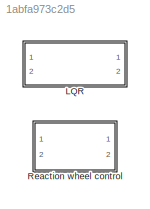
MODEL slx_1abfa973c2d5
KIND model
CONFIG AbsTol = auto
CONFIG FixedStep = auto
CONFIG MaxStep = auto
CONFIG MinStep = auto
CONFIG RelTol = 1e-3
CONFIG SampleTimeConstraint = Unconstrained
CONFIG Solver = VariableStepAuto
CONFIG SolverMode = Auto
CONFIG SolverName = VariableStepAuto
CONFIG StartTime = 0.0
CONFIG StopTime = 10.0
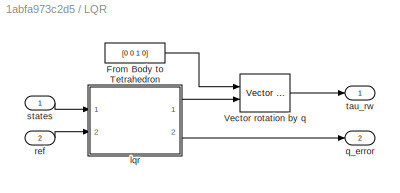
BLOCK [SubSystem] LQR
  Ports = [2, 2]
  RequestExecContextInheritance = off
  Variant = off
BLOCK [Constant] LQR/From Body to Tetrahedron
  Value = [0 0 1 0]
  VectorParams1D = off
BLOCK [Reference] LQR/Vector rotation by q  REF=aausat3_lib/Math Utilities/Quaternion operations/Vector rotation by q  (lib defined in mdl_4157f6465749, slx_d9305f96731e)
  Ports = [2, 1]
  SourceBlock = aausat3_lib/Math Utilities/Quaternion operations/Vector rotation by q
  SourceType = SubSystem
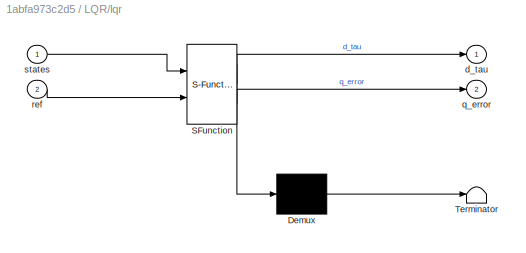
BLOCK [SubSystem] LQR/lqr
  ErrorFcn = Stateflow.Translate.translate
  PermitHierarchicalResolution = ExplicitOnly
  Ports = [2, 2]
  RequestExecContextInheritance = off
  SFBlockType = MATLAB Function
  SystemSampleTime = 1
  TreatAsAtomicUnit = on
  Variant = off
BLOCK [Demux] LQR/lqr/ Demux 
  Outputs = 1
  Ports = [1, 1]
BLOCK [S-Function] LQR/lqr/ SFunction 
  EnableBusSupport = off
  FunctionName = sf_sfun
  PortCounts = [2 3]
  Ports = [2, 3]
  SFunctionDeploymentMode = off
  Tag = Stateflow S-Function linear 7
BLOCK [Terminator] LQR/lqr/ Terminator 
BLOCK [Outport] LQR/lqr/d_tau
  IconDisplay = Port number
BLOCK [Outport] LQR/lqr/q_error
  IconDisplay = Port number
  Port = 2
BLOCK [Inport] LQR/lqr/ref
  IconDisplay = Port number
  Port = 2
BLOCK [Inport] LQR/lqr/states
  IconDisplay = Port number
BLOCK [Outport] LQR/q_error
  IconDisplay = Port number
  Port = 2
BLOCK [Inport] LQR/ref
  IconDisplay = Port number
  Port = 2
  PortDimensions = [10 1]
BLOCK [Inport] LQR/states
  IconDisplay = Port number
  PortDimensions = [7 1]
BLOCK [Outport] LQR/tau_rw
  IconDisplay = Port number
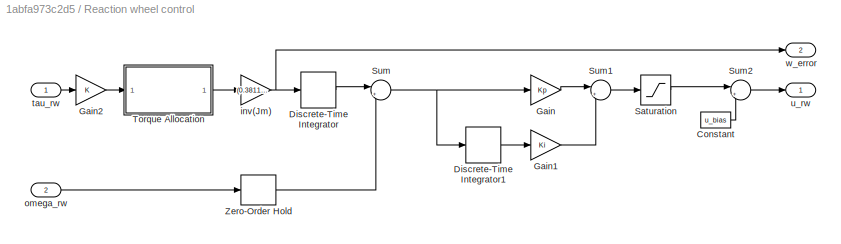
BLOCK [SubSystem] Reaction wheel control
  Ports = [2, 2]
  RequestExecContextInheritance = off
  Variant = off
BLOCK [Constant] Reaction wheel control/Constant
  Value = u_bias
BLOCK [DiscreteIntegrator] Reaction wheel control/Discrete-Time Integrator
  ICPrevOutput = DiscIntNeverNeededParam
  ICPrevScaledInput = DiscIntNeverNeededParam
  InitialCondition = omega_bias
  InitialConditionSetting = State (most efficient)
  LimitOutput = on
  LowerSaturationLimit = 0
  Ports = [1, 1]
  UpperSaturationLimit = 1600
BLOCK [DiscreteIntegrator] Reaction wheel control/Discrete-Time Integrator1
  ICPrevOutput = DiscIntNeverNeededParam
  ICPrevScaledInput = DiscIntNeverNeededParam
  InitialConditionSetting = State (most efficient)
  LimitOutput = on
  LowerSaturationLimit = -100
  Ports = [1, 1]
  SampleTime = Ts
  UpperSaturationLimit = 100
BLOCK [Gain] Reaction wheel control/Gain
  Gain = Kp
  OutDataTypeStr = Inherit: Inherit via internal rule
  ParamDataTypeStr = Inherit: Inherit via internal rule
  SaturateOnIntegerOverflow = off
BLOCK [Gain] Reaction wheel control/Gain1
  Gain = Ki
  OutDataTypeStr = Inherit: Inherit via internal rule
  ParamDataTypeStr = Inherit: Inherit via internal rule
  SaturateOnIntegerOverflow = off
BLOCK [Gain] Reaction wheel control/Gain2
  OutDataTypeStr = Inherit: Inherit via internal rule
  ParamDataTypeStr = Inherit: Inherit via internal rule
  SaturateOnIntegerOverflow = off
BLOCK [Saturate] Reaction wheel control/Saturation
  InputPortMap = u0
  LowerLimit = -ones(4,1)*3.3/2
  Ports = [1, 1]
  UpperLimit = ones(4,1)*3.3/2
BLOCK [Sum] Reaction wheel control/Sum
  IconShape = round
  InputSameDT = off
  Inputs = |+-
  OutDataTypeStr = Inherit: Inherit via internal rule
  Ports = [2, 1]
  SaturateOnIntegerOverflow = off
BLOCK [Sum] Reaction wheel control/Sum1
  IconShape = round
  InputSameDT = off
  Inputs = |++
  OutDataTypeStr = Inherit: Inherit via internal rule
  Ports = [2, 1]
  SaturateOnIntegerOverflow = off
BLOCK [Sum] Reaction wheel control/Sum2
  IconShape = round
  InputSameDT = off
  Inputs = |++
  OutDataTypeStr = Inherit: Inherit via internal rule
  Ports = [2, 1]
  SaturateOnIntegerOverflow = off
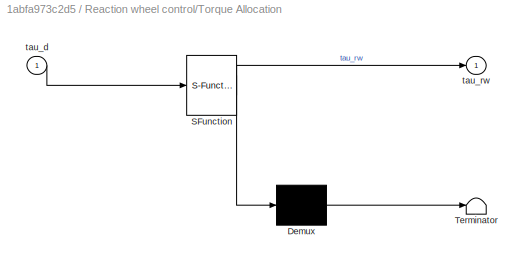
BLOCK [SubSystem] Reaction wheel control/Torque Allocation
  ErrorFcn = Stateflow.Translate.translate
  PermitHierarchicalResolution = ExplicitOnly
  Ports = [1, 1]
  RequestExecContextInheritance = off
  SFBlockType = MATLAB Function
  TreatAsAtomicUnit = on
  Variant = off
BLOCK [Demux] Reaction wheel control/Torque Allocation/ Demux 
  Outputs = 1
  Ports = [1, 1]
BLOCK [S-Function] Reaction wheel control/Torque Allocation/ SFunction 
  EnableBusSupport = off
  FunctionName = sf_sfun
  PortCounts = [1 2]
  Ports = [1, 2]
  SFunctionDeploymentMode = off
  Tag = Stateflow S-Function linear 8
BLOCK [Terminator] Reaction wheel control/Torque Allocation/ Terminator 
BLOCK [Inport] Reaction wheel control/Torque Allocation/tau_d
  IconDisplay = Port number
BLOCK [Outport] Reaction wheel control/Torque Allocation/tau_rw
  IconDisplay = Port number
BLOCK [ZeroOrderHold] Reaction wheel control/Zero-Order Hold
  SampleTime = Ts
BLOCK [Gain] Reaction wheel control/inv(Jm)
  Gain = (0.3811e-6)^-1
  OutDataTypeStr = Inherit: Inherit via internal rule
  ParamDataTypeStr = Inherit: Inherit via internal rule
  SaturateOnIntegerOverflow = off
BLOCK [Inport] Reaction wheel control/omega_rw
  IconDisplay = Port number
  Port = 2
BLOCK [Inport] Reaction wheel control/tau_rw
  IconDisplay = Port number
BLOCK [Outport] Reaction wheel control/u_rw
  IconDisplay = Port number
BLOCK [Outport] Reaction wheel control/w_error
  IconDisplay = Port number
  Port = 2
LINE LQR/From Body to Tetrahedron:1 -> LQR/Vector rotation by q:1
LINE LQR/Vector rotation by q:1 -> LQR/tau_rw:1
LINE LQR/lqr:1 -> LQR/Vector rotation by q:2
LINE LQR/lqr:2 -> LQR/q_error:1
LINE LQR/ref:1 -> LQR/lqr:2
LINE LQR/states:1 -> LQR/lqr:1
LINE Reaction wheel control/Constant:1 -> Reaction wheel control/Sum2:2
LINE Reaction wheel control/Discrete-Time Integrator1:1 -> Reaction wheel control/Gain1:1
LINE Reaction wheel control/Discrete-Time Integrator:1 -> Reaction wheel control/Sum:1
LINE Reaction wheel control/Gain1:1 -> Reaction wheel control/Sum1:2
LINE Reaction wheel control/Gain2:1 -> Reaction wheel control/Torque Allocation:1
LINE Reaction wheel control/Gain:1 -> Reaction wheel control/Sum1:1
LINE Reaction wheel control/Saturation:1 -> Reaction wheel control/Sum2:1
LINE Reaction wheel control/Sum1:1 -> Reaction wheel control/Saturation:1
LINE Reaction wheel control/Sum2:1 -> Reaction wheel control/u_rw:1
NET Reaction wheel control/Sum:1 -> Reaction wheel control/Discrete-Time Integrator1:1, Reaction wheel control/Gain:1
LINE Reaction wheel control/Torque Allocation:1 -> Reaction wheel control/inv(Jm):1
LINE Reaction wheel control/Zero-Order Hold:1 -> Reaction wheel control/Sum:2
NET Reaction wheel control/inv(Jm):1 -> Reaction wheel control/Discrete-Time Integrator:1, Reaction wheel control/w_error:1
LINE Reaction wheel control/omega_rw:1 -> Reaction wheel control/Zero-Order Hold:1
LINE Reaction wheel control/tau_rw:1 -> Reaction wheel control/Gain2:1
note: NET lines group one-source signal fan-out (src -> all destinations, sorted); 1:1 wires keep LINE
CHART LQR/lqr states=1 transitions=1
  STATE_LABEL 'eML_blk_kernel()'
  STATE_LABEL "SCRIPT:\nfunction [d_tau,q_error] = fcn(states,ref)\n%#codegen\nq_i_s = states(1:4);\nomega = states(5:7);\nq_i_ref = ref(1:4);\nomega_ref = ref(5:7);\n\nq_i_s = qunit(q_i_s);\nq_s_e = -qmult(q_i_ref,qinv(q_i_s));\n\nx = [q_s_e(1:3); omega];\nr = [[0 0 0]'; omega_ref];\n\nK = [-0.3764    0.0116   -0.0046   -0.9056   -0.0000    0.0000\n   -0.0120   -0.3945   -0.0173    0.0000   -0.9501    0.0000\n    0.0055    0.0...<+87ch>"
CHART Reaction wheel control/Torque Allocation states=1 transitions=1
  STATE_LABEL 'eML_blk_kernel()'
  STATE_LABEL "SCRIPT:\nfunction tau_rw = fcn(tau_d)\n%#codegen\nalpha = deg2rad(60);\nbeta = deg2rad(19.47);\n\nP_w_th = [cos(beta)    -cos(beta)*cos(alpha)  -cos(beta)*cos(alpha)    0;\n    0            cos(beta)*cos(alpha/2) -cos(beta)*cos(alpha/2)  0;\n    -sin(beta)   -sin(beta)             -sin(beta)               1];\n\nP_th_w = P_w_th'*(P_w_th*P_w_th')^-1;\ntau_rw = P_th_w*tau_d;"
